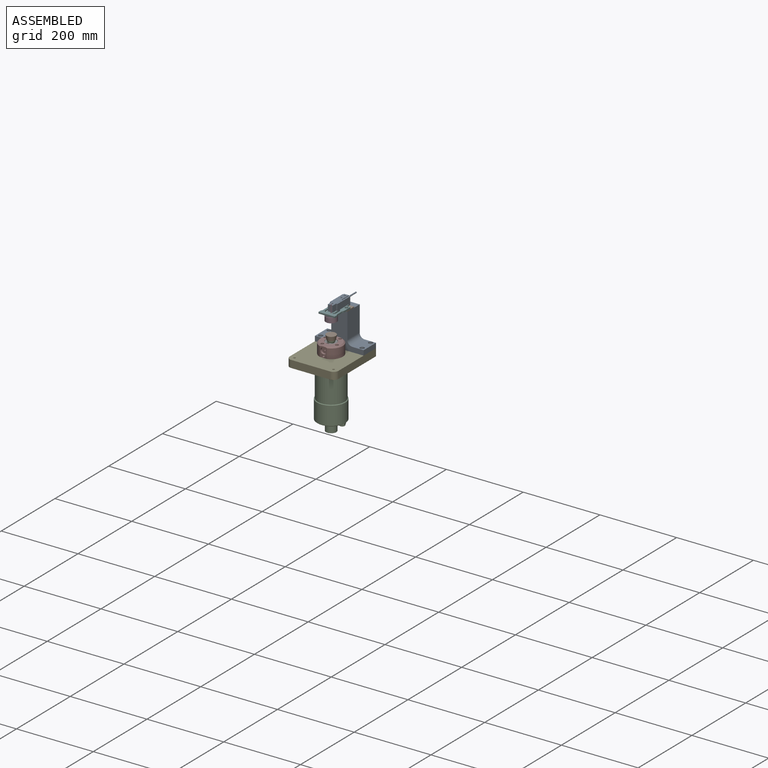
[diagram: assembled view]
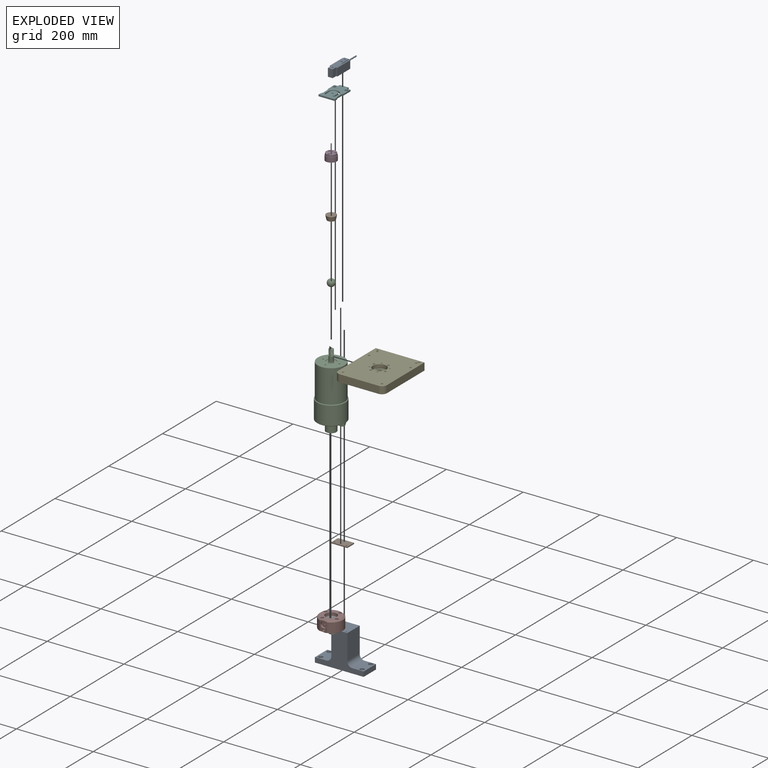
[diagram: exploded view]
GUIDED TOUR — MATED ASSEMBLY WITH SUBASSEMBLIES (Onshape document e1350d4f7f042d9ee2ff2963, AutoMate assembly e1350d4f7f042d9ee2ff2963_89f4badd9b98fbfe98499b85_08aeff5780a35d646b1b420d_default)

This assembly has 15 component occurrences arranged in 11 top-level units: 10 individual components plus 1 subassembly (S0). The tour has two levels: first the top level, where each subassembly is treated as one rigid unit; then each subassembly is toured internally in its own section (nesting deeper than one subassembly level is flattened into its subassembly's section).

Components are labeled P0..P14 across the whole record; subassembly units are labeled S0..S0. A mate is a constraint between two units; its type names the relative motion it leaves free:
  FASTENED — locks the two components together rigidly (no relative motion),
  SLIDER — leaves translation along the listed axis free.
Axis/direction vectors are unit vectors and 'through' points are millimeter coordinates, both in the assembly's world frame.

TOP-LEVEL MATES (between units; each subassembly's internal mates are listed in its own section)
  1. FASTENED "Fastened 5": P14 <-> P8, direction (0.000, 0.000, 1.000) through (0.00, 0.00, 51.94) mm
  2. FASTENED "Fastened 3": P4 <-> P10, direction (0.000, 0.000, 1.000) through (0.00, 0.00, 19.05) mm
  3. FASTENED "Fastened 1": P2 <-> P4, direction (0.000, 0.000, 1.000) through (0.00, 0.00, 0.00) mm
  4. SLIDER "Slider 1": P1 <-> P14, axis (0.000, 0.000, -1.000) through (0.00, 0.00, 51.94) mm
  5. FASTENED "Fastened 4": P10 <-> P8, direction (0.000, 0.000, 1.000) through (0.00, 0.00, 47.63) mm
  6. FASTENED "Fastened 6": S0 <-> P7, direction (0.000, 0.000, 1.000) through (0.00, 4.76, 113.61) mm
  7. FASTENED "Fastened 9": P13 <-> P11, direction (0.000, 0.000, -1.000) through (-15.50, 34.76, 110.88) mm
  8. FASTENED "Fastened 8": P11 <-> P0, direction (0.000, 0.000, 1.000) through (0.00, 38.04, 110.88) mm
  9. FASTENED "Fastened 7": S0 <-> P0, direction (0.000, 0.000, 1.000) through (0.00, 4.76, 113.61) mm

TOP-LEVEL ASSEMBLY ORDER
  1. P2 — the base component [order heuristic]
  2. P4 [order verified]
  3. P8 — core [order heuristic]
  4. P10 — core [order heuristic]
  5. P14 [order verified]
  6. P11 [order verified]
  7. P1 [order verified]
  8. S0 [order verified]
  9. P13 [order verified]
  10. P7 [order verified]
  11. P0 [order verified]
(P1 verified with a relaxed clearance tolerance: the source model stores slight part interference there.)
Order-tag legend:
  [order verified] — this step's position reverses a verified removal order: the component was checked to insert without passing through the ones already placed.
  [order heuristic] — the first 3 components form the assembly's core: parts whose collision-free extraction could not be verified, listed in mate-graph order.

Of the 15 component occurrences, 2 carry the full construction recipe — the FeatureScript program that regenerates the part's solid from scratch; the rest are supplied as boundary geometry only. Each toured unit is shown spotlighted twice — assembled, then exploded with a leader line back to its socket (green = recipe-attached component, orange = geometry-only, blue = subassembly unit; the rest desaturated gray).
NOTE — this tour is split across 2 documents so each fits a 32k-token context. This is document 1: the component sections continue in the remaining 1 document, each repeating the header above.
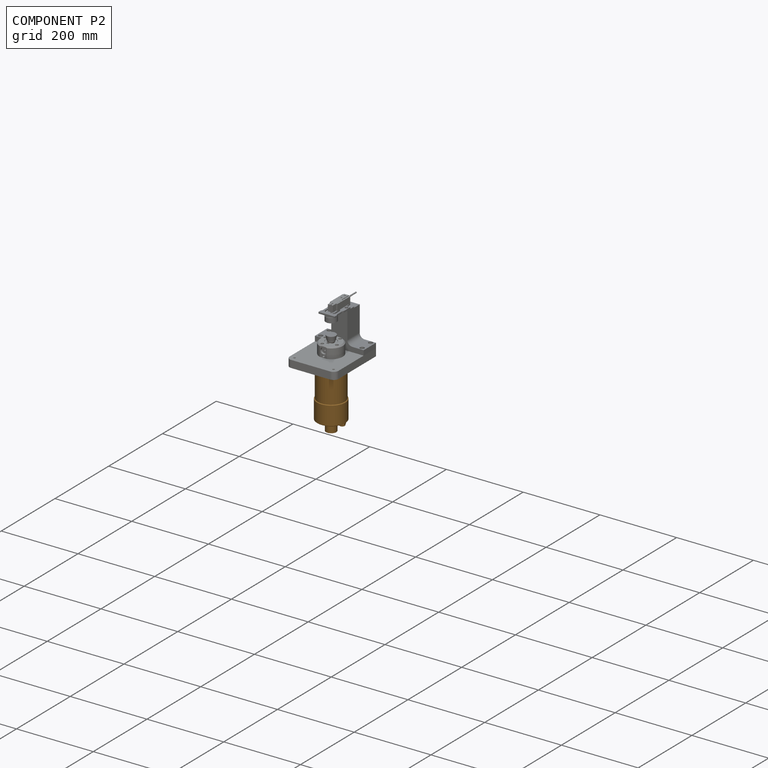
[diagram: component P2 — assembled]
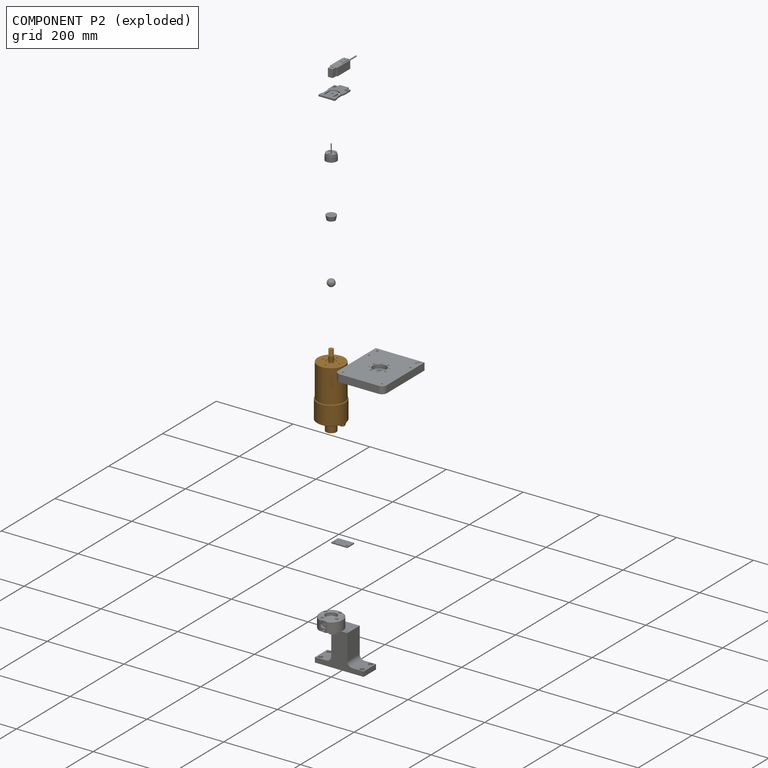
[diagram: component P2 — exploded]
COMPONENT P2 — geometry summary (no construction recipe available for this part):
  bounding box: 193.0 x 74.0 x 74.0 mm
  B-rep topology: 1 solid, 135 faces, 644 edges
  volume: 570761 mm^3 (54% of its bounding box)
  symmetry: mirror-symmetric across its x mid-plane
Held by: FASTENED mate "Fastened 1" to P4.
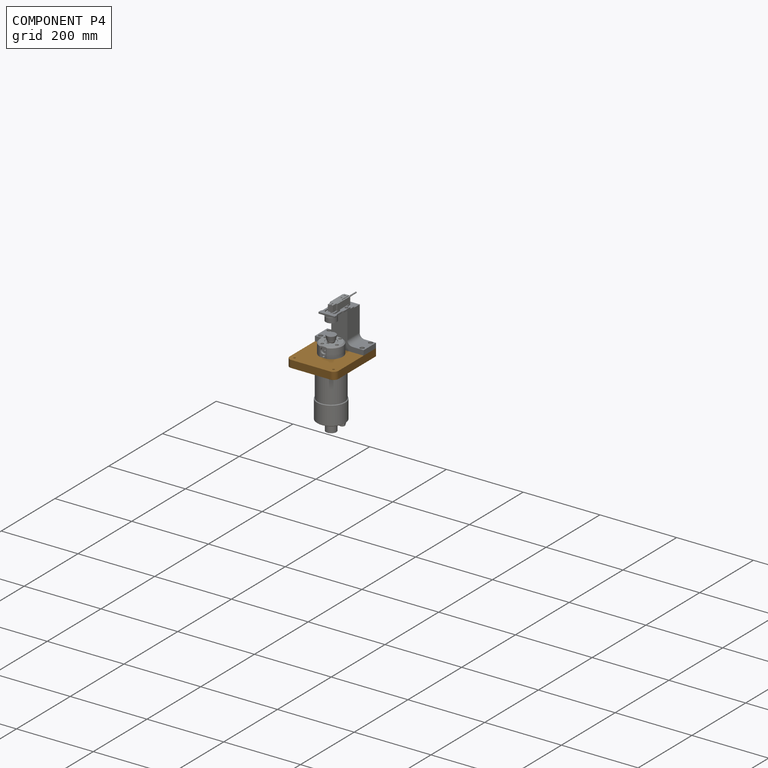
[diagram: component P4 — assembled]
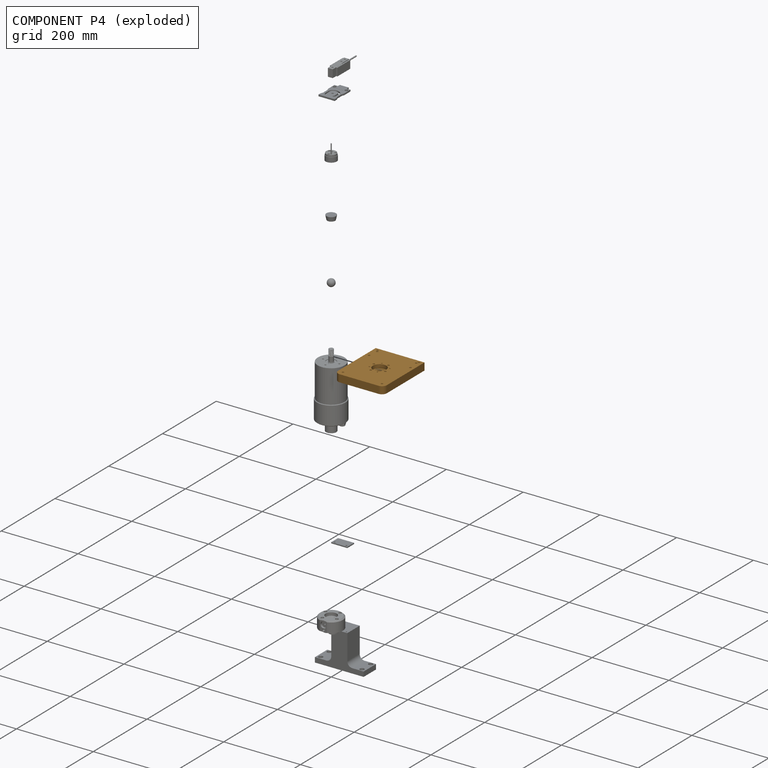
[diagram: component P4 — exploded]
COMPONENT P4 — geometry summary (no construction recipe available for this part):
  bounding box: 152.7 x 127.0 x 19.1 mm
  B-rep topology: 1 solid, 31 faces, 168 edges
  volume: 351803 mm^3 (95% of its bounding box)
Held by: FASTENED mate "Fastened 3" to P10; FASTENED mate "Fastened 1" to P2.
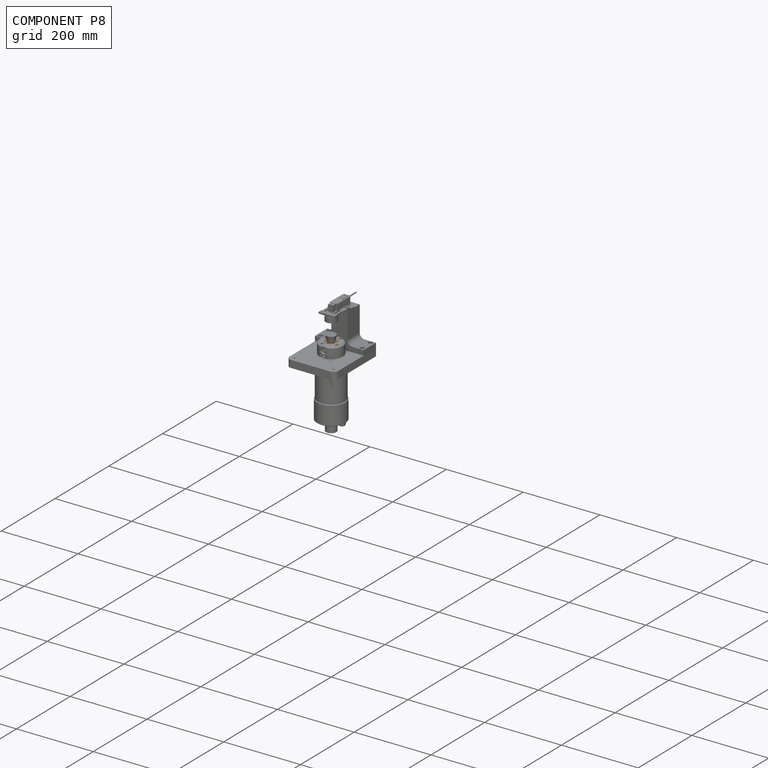
[diagram: component P8 — assembled]
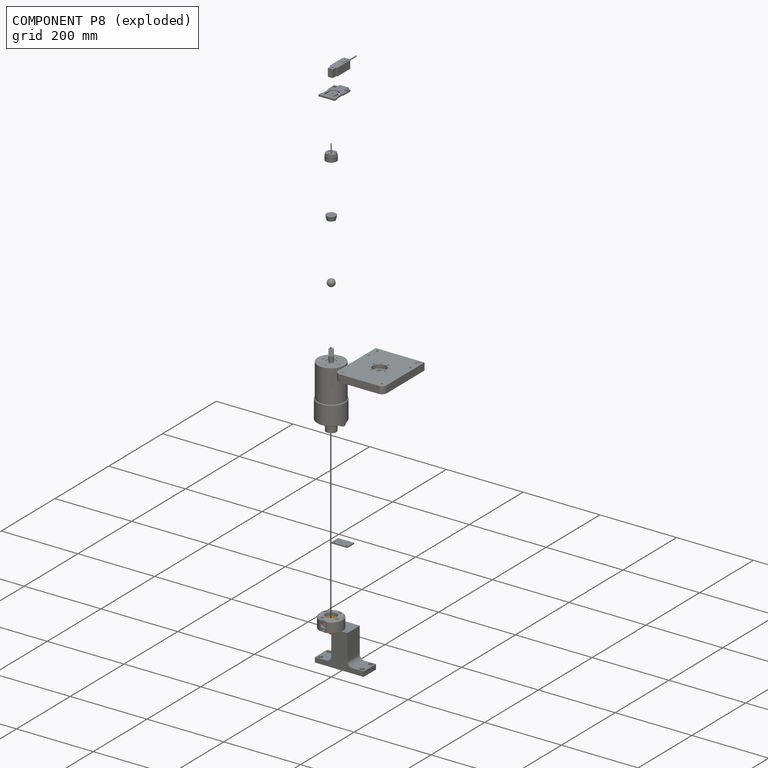
[diagram: component P8 — exploded]
COMPONENT P8 — geometry summary (no construction recipe available for this part):
  bounding box: 34.6 x 31.3 x 30.3 mm
  B-rep topology: 1 solid, 28 faces, 140 edges
  volume: 18357 mm^3 (56% of its bounding box)
  symmetry: mirror-symmetric across its y mid-plane
Held by: FASTENED mate "Fastened 5" to P14; FASTENED mate "Fastened 4" to P10.
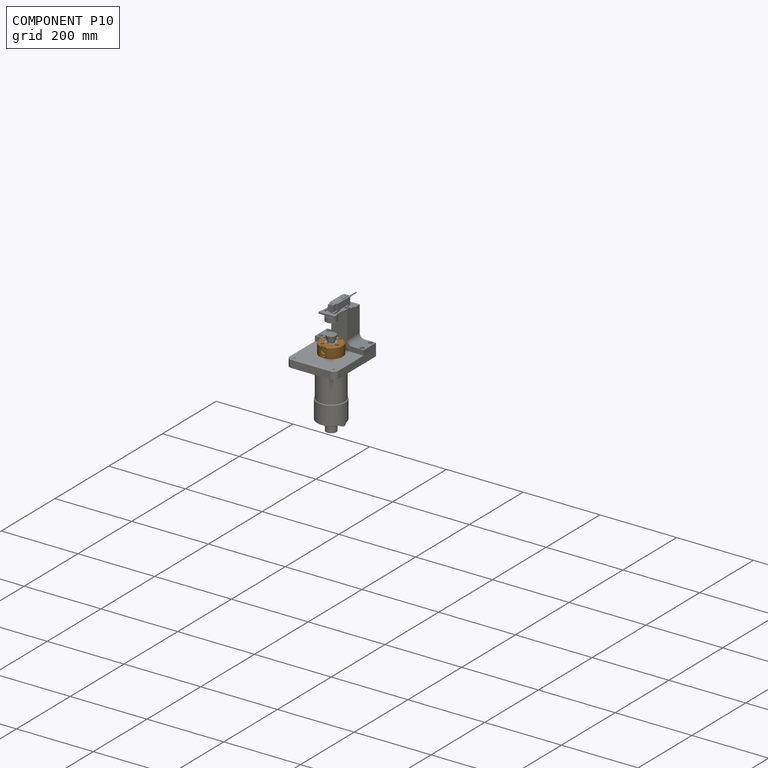
[diagram: component P10 — assembled]
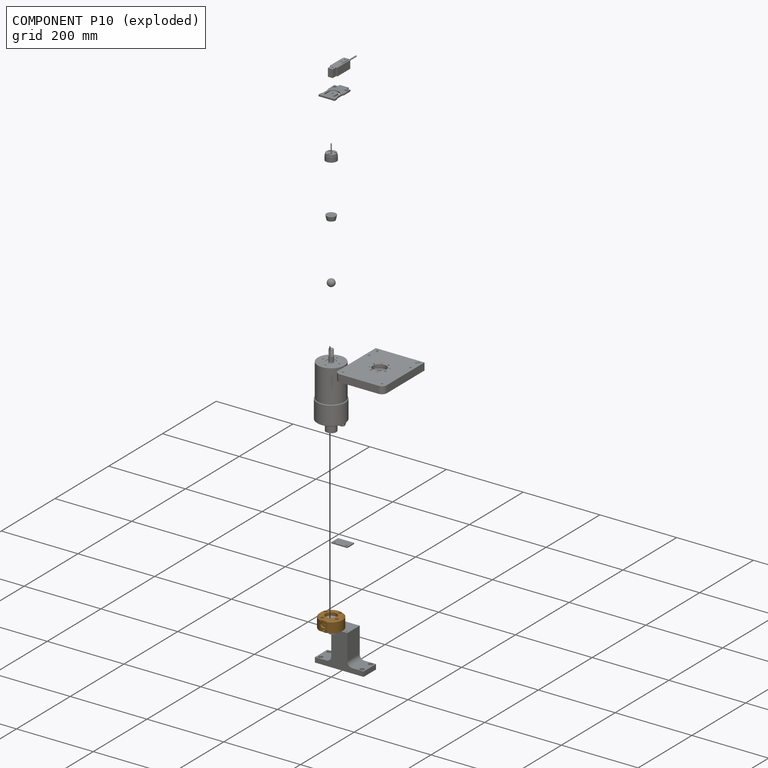
[diagram: component P10 — exploded]
COMPONENT P10 — geometry summary (no construction recipe available for this part):
  bounding box: 60.3 x 60.3 x 28.6 mm
  B-rep topology: 1 solid, 27 faces, 122 edges
  volume: 50724 mm^3 (49% of its bounding box)
Held by: FASTENED mate "Fastened 3" to P4; FASTENED mate "Fastened 4" to P8.
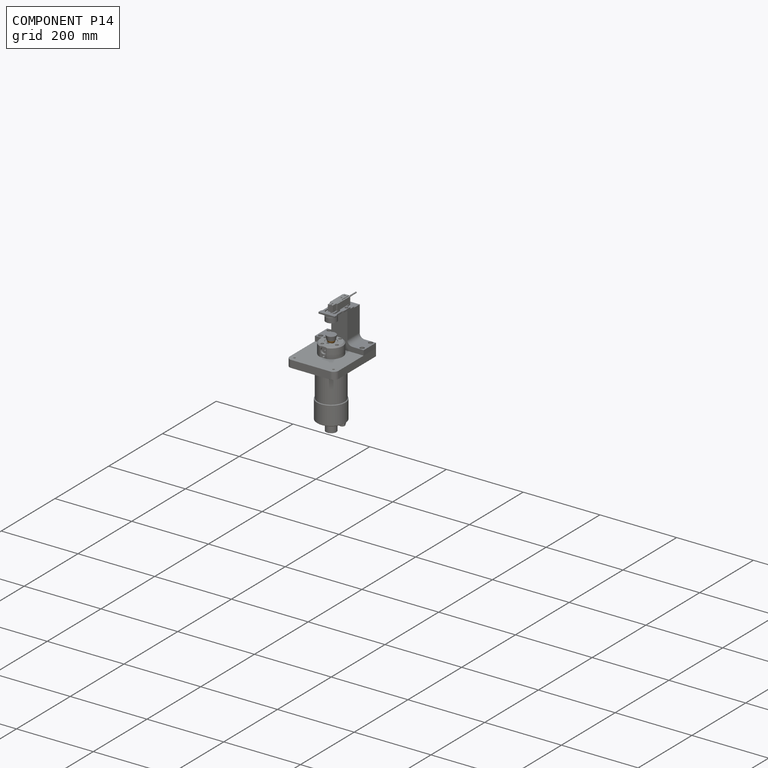
[diagram: component P14 — assembled]
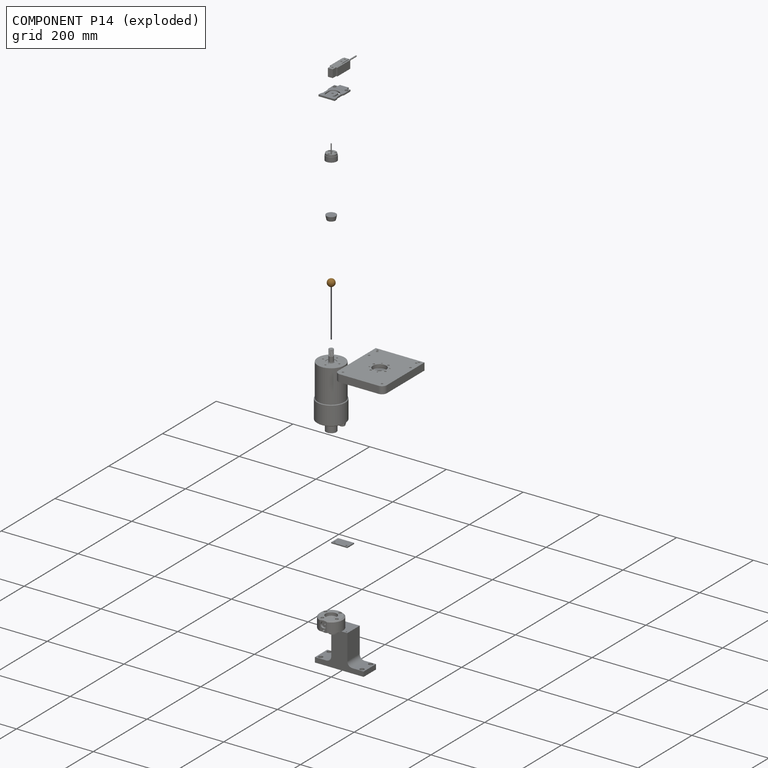
[diagram: component P14 — exploded]
COMPONENT P14 — geometry summary (no construction recipe available for this part):
  bounding box: 19.1 x 19.1 x 19.1 mm
  B-rep topology: 1 solid, 1 faces, 4 edges
  volume: 3620 mm^3 (52% of its bounding box)
  symmetry: revolution-symmetric about the x axis through its bounding-box center; revolution-symmetric about the y axis through its bounding-box center; revolution-symmetric about the z axis through its bounding-box center; mirror-symmetric across its x mid-plane, y mid-plane, z mid-plane
Held by: FASTENED mate "Fastened 5" to P8; SLIDER mate "Slider 1" to P1.
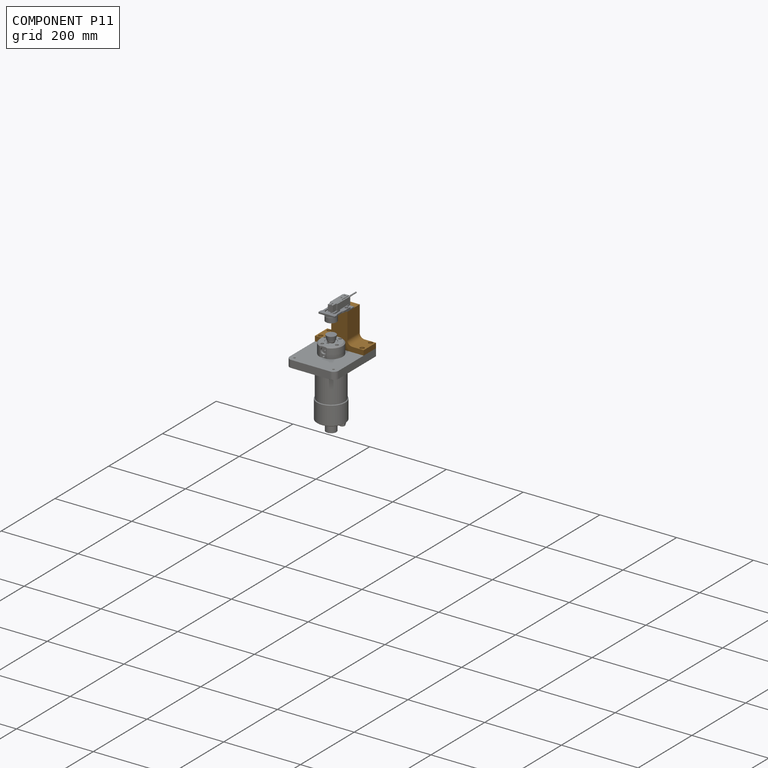
[diagram: component P11 — assembled]
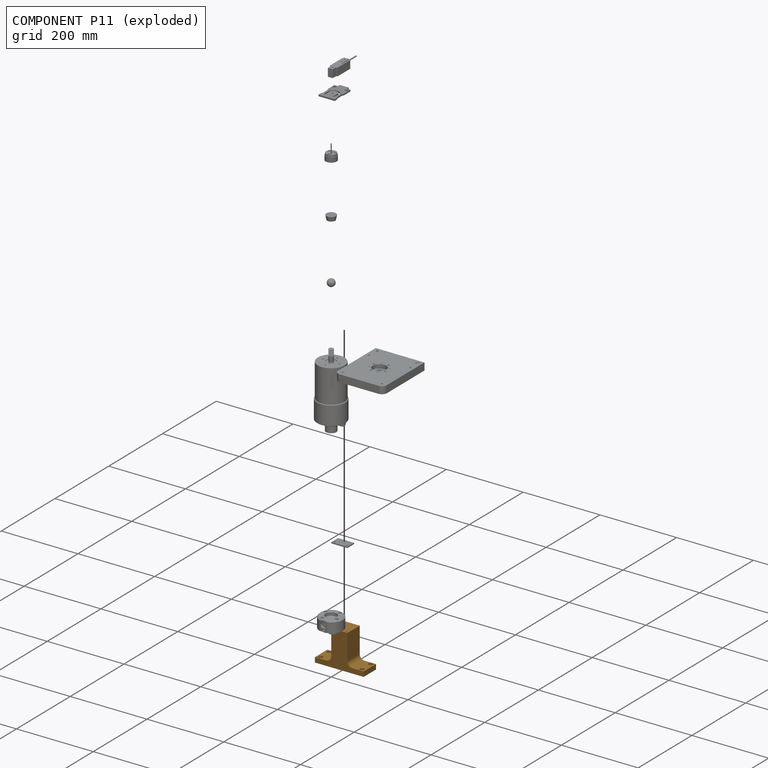
[diagram: component P11 — exploded]
COMPONENT P11 — geometry summary (no construction recipe available for this part):
  bounding box: 127.0 x 91.8 x 46.0 mm
  B-rep topology: 1 solid, 32 faces, 152 edges
  volume: 226254 mm^3 (42% of its bounding box)
  symmetry: mirror-symmetric across its y mid-plane
Held by: FASTENED mate "Fastened 9" to P13; FASTENED mate "Fastened 8" to P0.
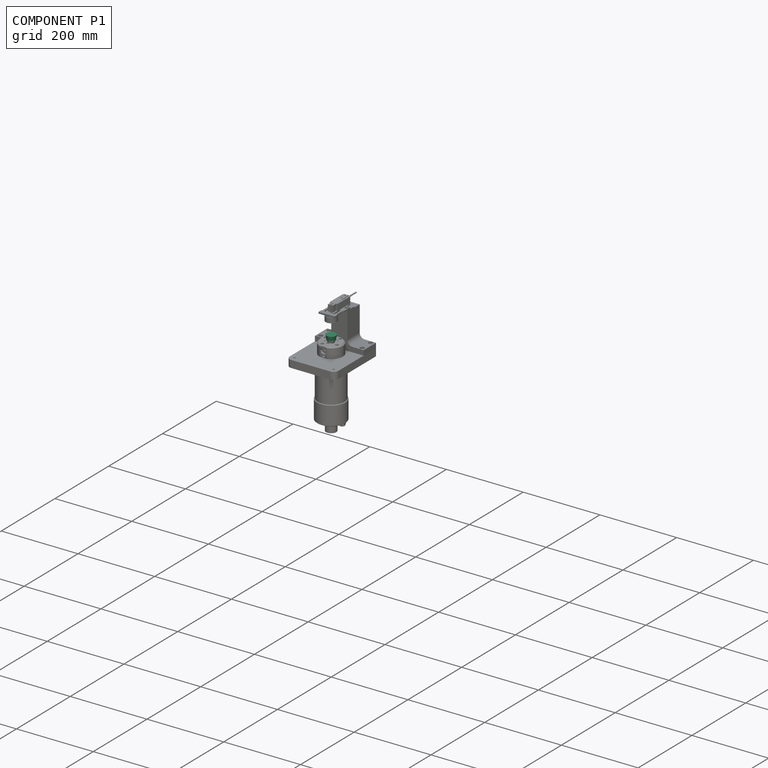
[diagram: component P1 — assembled]
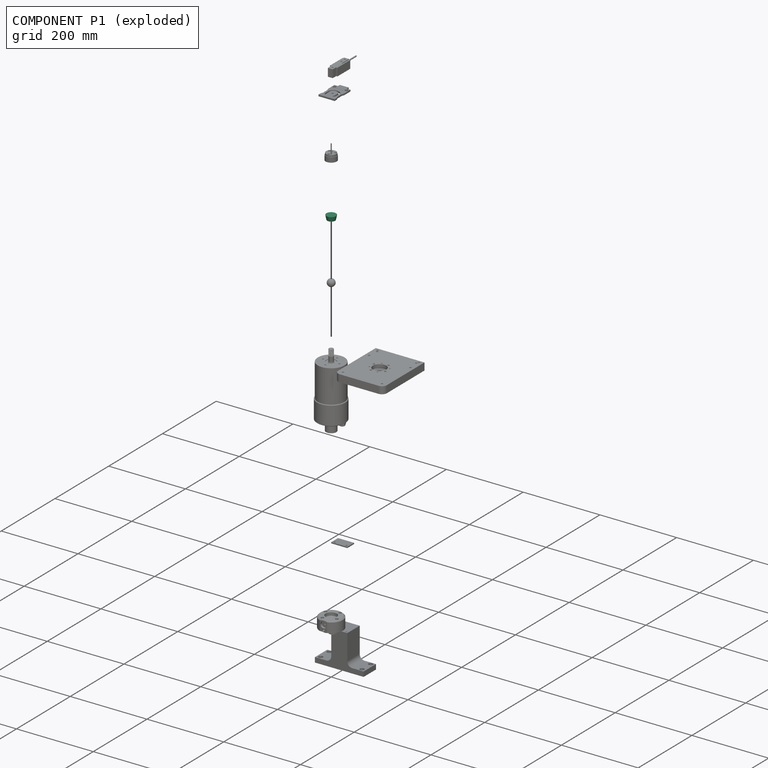
[diagram: component P1 — exploded]
COMPONENT P1 — recipe-attached (CADFS 00536556, mesh-verified: the recipe's output STEP matches this component's geometry to below the mesh-comparison resolution (tessellation chordal tolerance ~0.0561 mm)).
Held by: SLIDER mate "Slider 1" to P14.
Construction recipe (FeatureScript — the CAD program that rebuilds this solid; sketch coordinates are in the units given by the * unit suffixes, e.g. mm):

FeatureScript 1511;
import(path : "onshape/std/geometry.fs", version : "1511.0");
import(path : "onshape/std/common.fs", version : "1511.0");
const mm = millimeter;
const VERTEX = EntityType.VERTEX;
const EDGE = EntityType.EDGE;
const FACE = EntityType.FACE;
const BODY = EntityType.BODY;
function v(x, y){return vector(x, y);}
function OD(order){return orderDisambiguation(order);}
function OSD(set){return originalSetDisambiguation(set);}
function TD(topology){return topologyDisambiguation(topology);}
function TDD(query){return trueDependencyDisambiguation(query);}
function sQuery(a, b, c) {return sketchEntityQuery(a, b, c);}

annotation { "Feature Type Name" : "Feature", "Feature Type Description" : "" }
export const myFeature = defineFeature(function(context is Context, id is Id, definition is map)
    precondition{}
    {
        {
            var Q0;
            Q0=qCreatedBy(makeId("Front.planeOp"),FACE);
            var sketch = newSketch(context, id + "F0", { "sketchPlane" : qUnion([Q0])});
            skLineSegment(sketch, "E0", {"start": v(0, 0) * mm, "end": v(12.12, 0) * mm});
            skLineSegment(sketch, "E1", {"start": v(12.52, 0.4) * mm, "end": v(12.52, 0.81) * mm});
            skLineSegment(sketch, "E2", {"start": v(12.52, 0.81) * mm, "end": v(10.16, 12.1) * mm, "construction": true});
            skLineSegment(sketch, "E3", {"start": v(10.16, 12.1) * mm, "end": v(9.58, 12.1) * mm});
            skLineSegment(sketch, "E4", {"start": v(0, 0) * mm, "end": v(0, 2.54) * mm});
            skLineSegment(sketch, "E5", {"start": v(9.58, 12.1) * mm, "end": v(0, 12.1) * mm, "construction": true});
            skLineSegment(sketch, "E6", {"start": v(0, 12.1) * mm, "end": v(0, 2.54) * mm, "construction": true});
            skLineSegment(sketch, "E7", {"start": v(0, 12.1) * mm, "end": v(10.16, 12.1) * mm, "construction": true});
            skLineSegment(sketch, "E8", {"start": v(10.16, 12.1) * mm, "end": v(12.52, 0.81) * mm});
            skLineSegment(sketch, "E9", {"start": v(12.12, 0) * mm, "end": v(12.52, 0.4) * mm});
            skPoint(sketch, "E10.orphan", {"position": v(12.52, 0) * mm});
            skLineSegment(sketch, "E11", {"start": v(9.58, 12.1) * mm, "end": v(9.58, 10.16) * mm});
            skLineSegment(sketch, "E12", {"start": v(1.96, 2.54) * mm, "end": v(0, 2.54) * mm});
            skPoint(sketch, "E13.visualSharp", {"position": v(9.58, 2.54) * mm});
            skArc(sketch, "E13.filletArc", {"start": v(1.96, 2.54) * mm, "mid": v(7.35, 4.77) * mm, "end": v(9.58, 10.16) * mm});
            skSolve(sketch);
        }
        {
            var Q0;
            Q0=qSketchRegion(id+"F0",true);
            var Q1;
            Q1=sQuery(id+"F0.wireOp",EDGE,"E6");
            revolve(context, id + "F1", {"entities" : qUnion([Q0]), "axis" : qUnion([Q1]), "revolveType" : RevolveType.FULL});
        }
    });
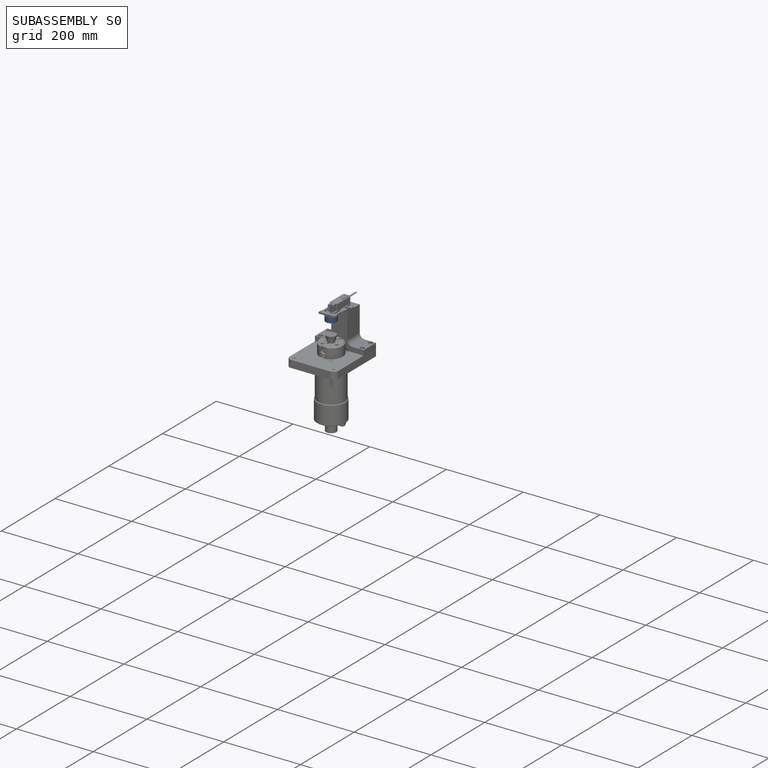
[diagram: subassembly S0 — assembled]
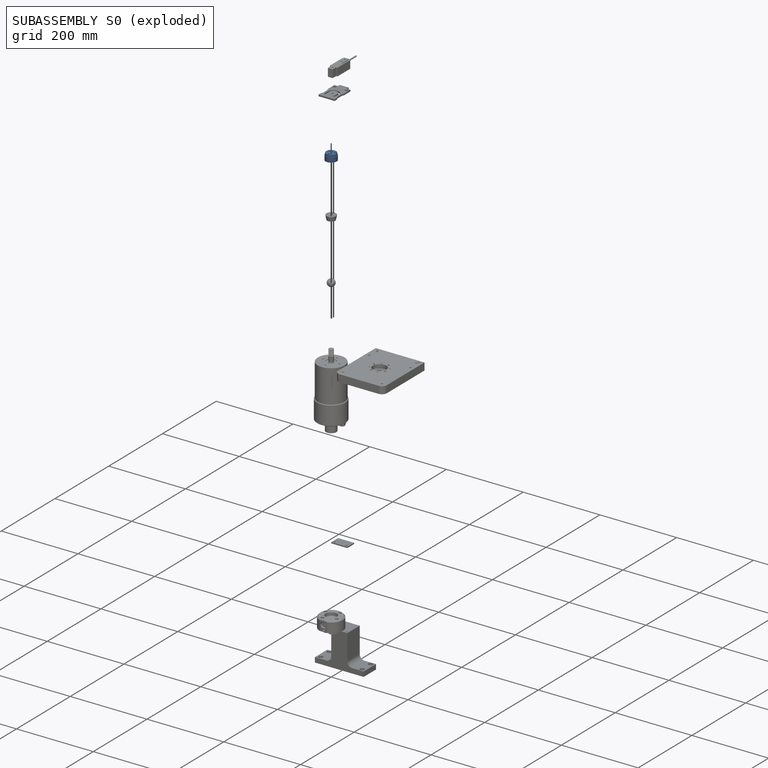
[diagram: subassembly S0 — exploded]
SUBASSEMBLY S0 — 5 components (P3, P5, P6, P9, P12), of which 0 recipe-attached; toured below.
Held by: FASTENED mate "Fastened 6" to P7; FASTENED mate "Fastened 7" to P0.
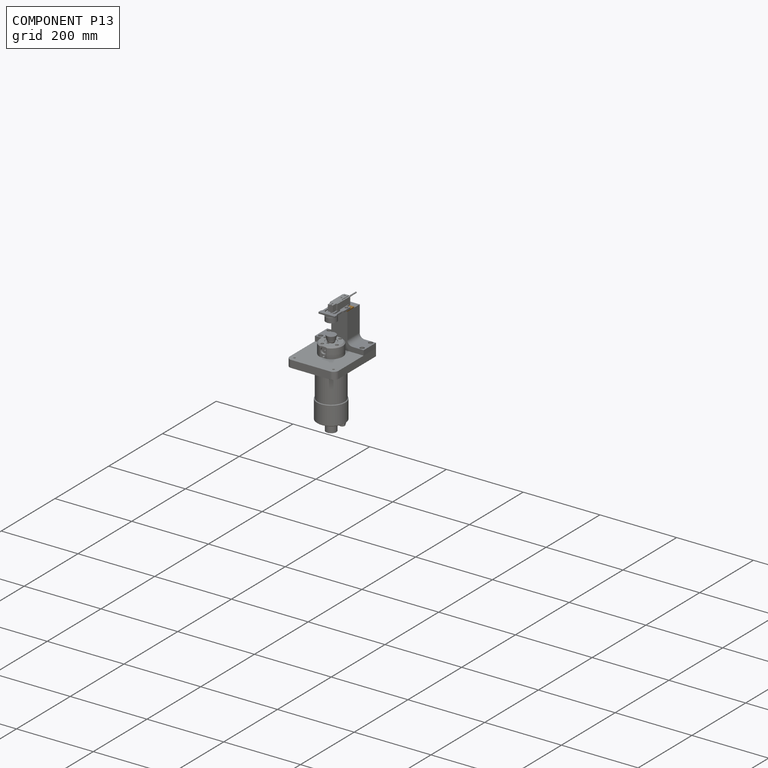
[diagram: component P13 — assembled]
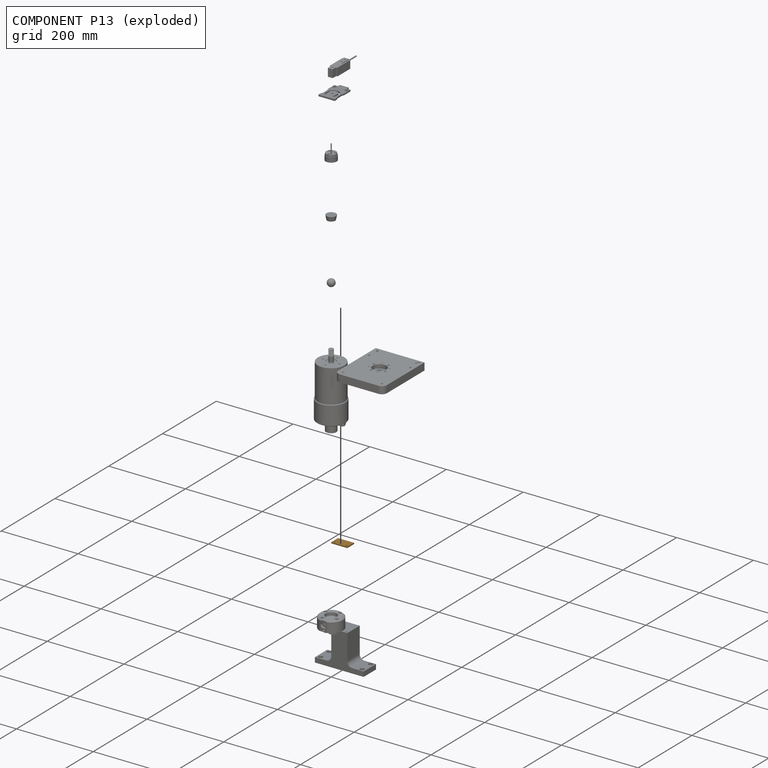
[diagram: component P13 — exploded]
COMPONENT P13 — geometry summary (no construction recipe available for this part):
  bounding box: 42.0 x 25.4 x 2.7 mm
  B-rep topology: 1 solid, 8 faces, 36 edges
  volume: 2836 mm^3 (97% of its bounding box)
  symmetry: 2-fold rotationally symmetric about the y axis; mirror-symmetric across its x mid-plane, z mid-plane
Held by: FASTENED mate "Fastened 9" to P11.
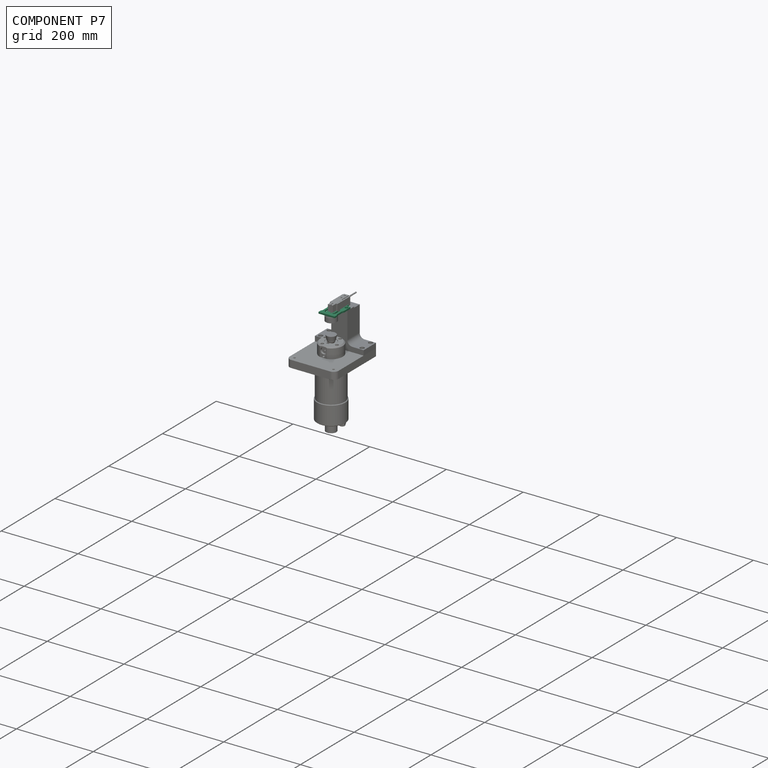
[diagram: component P7 — assembled]
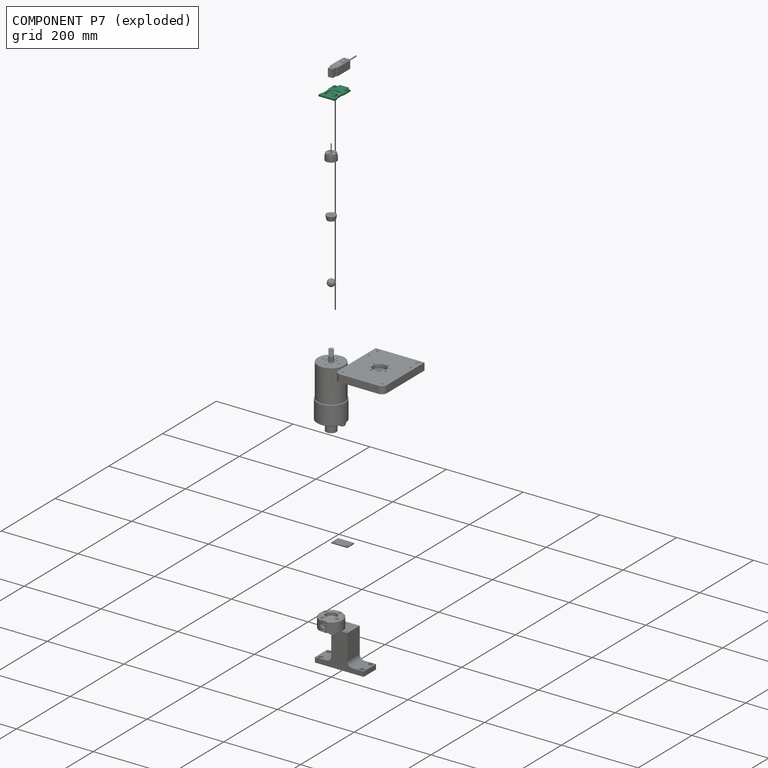
[diagram: component P7 — exploded]
COMPONENT P7 — recipe-attached (CADFS 00536474, mesh-verified: the recipe's output STEP matches this component's geometry to below the mesh-comparison resolution (tessellation chordal tolerance ~0.118 mm)).
Held by: FASTENED mate "Fastened 6" to P3.
Construction recipe (FeatureScript — the CAD program that rebuilds this solid; sketch coordinates are in the units given by the * unit suffixes, e.g. mm):

FeatureScript 1511;
import(path : "onshape/std/geometry.fs", version : "1511.0");
import(path : "onshape/std/common.fs", version : "1511.0");
const mm = millimeter;
const VERTEX = EntityType.VERTEX;
const EDGE = EntityType.EDGE;
const FACE = EntityType.FACE;
const BODY = EntityType.BODY;
function v(x, y){return vector(x, y);}
function OD(order){return orderDisambiguation(order);}
function OSD(set){return originalSetDisambiguation(set);}
function TD(topology){return topologyDisambiguation(topology);}
function TDD(query){return trueDependencyDisambiguation(query);}
function sQuery(a, b, c) {return sketchEntityQuery(a, b, c);}

annotation { "Feature Type Name" : "Feature", "Feature Type Description" : "" }
export const myFeature = defineFeature(function(context is Context, id is Id, definition is map)
    precondition{}
    {
        {
            var Q0;
            Q0=qCreatedBy(makeId("Top.planeOp"),FACE);
            var sketch = newSketch(context, id + "F0", { "sketchPlane" : qUnion([Q0])});
            skLineSegment(sketch, "E0.bottom", {"start": v(-33, 21) * mm, "end": v(33, 21) * mm, "construction": true});
            skLineSegment(sketch, "E0.top", {"start": v(-33, -21) * mm, "end": v(33, -21) * mm, "construction": true});
            skLineSegment(sketch, "E0.left", {"start": v(-33, 21) * mm, "end": v(-33, -21) * mm, "construction": true});
            skLineSegment(sketch, "E0.right", {"start": v(33, 21) * mm, "end": v(33, -21) * mm, "construction": true});
            skLineSegment(sketch, "E1", {"start": v(-33, 21) * mm, "end": v(33, -21) * mm, "construction": true});
            skPoint(sketch, "E2", {"position": v(-11, 0) * mm});
            skPoint(sketch, "E3", {"position": v(19, 15.5) * mm});
            skPoint(sketch, "E4", {"position": v(19, -15.5) * mm});
            skLineSegment(sketch, "E5", {"start": v(19, 15.5) * mm, "end": v(19, -15.5) * mm, "construction": true});
            skLineSegment(sketch, "E6", {"start": v(19, 0) * mm, "end": v(33, 0) * mm, "construction": true});
            skPoint(sketch, "E6.endSnap0", {"position": v(33, 0) * mm});
            skSolve(sketch);
        }
        {
            var Q0;
            Q0=qCreatedBy(makeId("Top.planeOp"),FACE);
            var sketch = newSketch(context, id + "F1", { "sketchPlane" : qUnion([Q0])});
            skLineSegment(sketch, "E7", {"start": v(26, 21) * mm, "end": v(-33, 21) * mm});
            skLineSegment(sketch, "E8", {"start": v(-33, 21) * mm, "end": v(-33, -21) * mm});
            skLineSegment(sketch, "E9", {"start": v(19, 15.5) * mm, "end": v(33, 15.5) * mm, "construction": true});
            skLineSegment(sketch, "E10", {"start": v(26, 15.5) * mm, "end": v(26, 31.74) * mm, "construction": true});
            skLineSegment(sketch, "E11", {"start": v(12, 15.72) * mm, "end": v(12, 31.74) * mm, "construction": true});
            skLineSegment(sketch, "E12", {"start": v(12, 31.74) * mm, "end": v(26, 31.74) * mm, "construction": true});
            skLineSegment(sketch, "E13", {"start": v(19, 15.5) * mm, "end": v(19, 31.74) * mm, "construction": true});
            skCircle(sketch, "E14", {"center": v(19, 15.5) * mm, "radius": 4 * mm});
            skLineSegment(sketch, "E15", {"start": v(26, 21) * mm, "end": v(26, 14.04) * mm});
            skLineSegment(sketch, "E16", {"start": v(28.54, 11.5) * mm, "end": v(33, 11.5) * mm});
            skLineSegment(sketch, "E17", {"start": v(33, 11.5) * mm, "end": v(33, -11.5) * mm});
            skLineSegment(sketch, "E18", {"start": v(33, -11.5) * mm, "end": v(26, -11.5) * mm});
            skLineSegment(sketch, "E19", {"start": v(26, -11.5) * mm, "end": v(26, -21) * mm});
            skLineSegment(sketch, "E20", {"start": v(26, -21) * mm, "end": v(-33, -21) * mm});
            skPoint(sketch, "E21", {"position": v(33, 0) * mm});
            skLineSegment(sketch, "E22", {"start": v(33, 0) * mm, "end": v(7.99, 0) * mm, "construction": true});
            skCircle(sketch, "E23.MirrorC", {"center": v(19, -15.5) * mm, "radius": 4 * mm});
            skPoint(sketch, "E24.visualSharp", {"position": v(26, 11.5) * mm});
            skArc(sketch, "E24.filletArc", {"start": v(26, 14.04) * mm, "mid": v(26.74, 12.24) * mm, "end": v(28.54, 11.5) * mm});
            skSolve(sketch);
        }
        {
            var Q0;
            Q0=makeQuery(id+"F1.imprint","IMPRINT",FACE,{"disambiguationData":[TD([[makeQuery(id+"F1.imprint","IMPRINT",EDGE,{"derivedFrom":sQuery(id+"F1.wireOp",EDGE,"E7")}),1.0]])]});
            var Q1;
            Q1 = qConstructionFilter(qBodyType(qCreatedBy(id + "F1" ,EDGE), BodyType.WIRE), ConstructionObject.NO);
            extrude(context, id + "F2", {"entities" : qUnion([Q0]), "surfaceEntities" : qUnion([Q1]), "depth" : 4.06 * mm, "offsetDistance" : 25.4 * mm});
        }
        {
            var Q0;
            Q0=sQuery(id+"F0.wireOp",VERTEX,"E2");
            var Q1;
            Q1=makeQuery(id+"F2.opExtrude","SWEPT_BODY",BODY,{"disambiguationData":[OSD([sQuery(id+"F1.wireOp",EDGE,"E7"),sQuery(id+"F1.wireOp",EDGE,"E8"),sQuery(id+"F1.wireOp",EDGE,"E14"),sQuery(id+"F1.wireOp",EDGE,"E15"),sQuery(id+"F1.wireOp",EDGE,"E16"),sQuery(id+"F1.wireOp",EDGE,"E17"),sQuery(id+"F1.wireOp",EDGE,"E18"),sQuery(id+"F1.wireOp",EDGE,"E19"),sQuery(id+"F1.wireOp",EDGE,"E20"),sQuery(id+"F1.wireOp",EDGE,"E23.MirrorC"),sQuery(id+"F1.wireOp",EDGE,"E24.filletArc")])]});
            hole(context, id + "F3", {"style" : HoleStyle.SIMPLE, "endStyle" : HoleEndStyle.THROUGH, "oppositeDirection" : true, "standardTappedOrClearance" : lookupTablePath({ "standard" : "ISO", "size" : "5", "type" : "Drilled" }), "standardBlindInLast" : lookupTablePath({ "standard" : "ISO", "size" : "5", "type" : "Drilled" }), "holeDiameter" : 5 * mm, "majorDiameter" : 6.35 * mm, "tappedDepth" : 9.52 * mm, "tapClearance" : 1, "startFromSketch" : true, "locations" : qUnion([Q0]), "scope" : qUnion([Q1])});
        }
        {
            var Q0;
            Q0=makeQuery(id+"F2.opExtrude","CAP_FACE",FACE,{"disambiguationData":[OSD([sQuery(id+"F1.wireOp",EDGE,"E7"),sQuery(id+"F1.wireOp",EDGE,"E8"),sQuery(id+"F1.wireOp",EDGE,"E14"),sQuery(id+"F1.wireOp",EDGE,"E15"),sQuery(id+"F1.wireOp",EDGE,"E16"),sQuery(id+"F1.wireOp",EDGE,"E17"),sQuery(id+"F1.wireOp",EDGE,"E18"),sQuery(id+"F1.wireOp",EDGE,"E19"),sQuery(id+"F1.wireOp",EDGE,"E20"),sQuery(id+"F1.wireOp",EDGE,"E23.MirrorC"),sQuery(id+"F1.wireOp",EDGE,"E24.filletArc")])],"isStart":true});
            var sketch = newSketch(context, id + "F4", { "sketchPlane" : qUnion([Q0])});
            skLineSegment(sketch, "E25", {"start": v(-23.7, -21) * mm, "end": v(-23.7, -20.2) * mm});
            skLineSegment(sketch, "E26", {"start": v(-23.7, -20.2) * mm, "end": v(-18.94, -18.78) * mm});
            skLineSegment(sketch, "E27", {"start": v(-18.94, -18.78) * mm, "end": v(-3.06, -18.78) * mm});
            skLineSegment(sketch, "E28", {"start": v(-3.06, -18.78) * mm, "end": v(1.7, -20.2) * mm});
            skLineSegment(sketch, "E29", {"start": v(1.7, -20.2) * mm, "end": v(1.7, -21) * mm});
            skLineSegment(sketch, "E30", {"start": v(1.7, -21) * mm, "end": v(-23.7, -21) * mm});
            skLineSegment(sketch, "E31", {"start": v(-11, 0) * mm, "end": v(-11, -18.78) * mm, "construction": true});
            skLineSegment(sketch, "E32", {"start": v(-11, 0) * mm, "end": v(48.35, 0) * mm, "construction": true});
            skLineSegment(sketch, "E33.MirrorCS", {"start": v(-23.7, 21) * mm, "end": v(-23.7, 20.2) * mm});
            skLineSegment(sketch, "E34.MirrorCS", {"start": v(1.7, 20.2) * mm, "end": v(1.7, 21) * mm});
            skLineSegment(sketch, "E35.MirrorCS", {"start": v(-23.7, 20.2) * mm, "end": v(-18.94, 18.78) * mm});
            skLineSegment(sketch, "E36.MirrorCS", {"start": v(-3.06, 18.78) * mm, "end": v(1.7, 20.2) * mm});
            skLineSegment(sketch, "E37.MirrorCS", {"start": v(1.7, 21) * mm, "end": v(-23.7, 21) * mm});
            skLineSegment(sketch, "E38.MirrorCS", {"start": v(-18.94, 18.78) * mm, "end": v(-3.06, 18.78) * mm});
            skSolve(sketch);
        }
        {
            var Q0;
            Q0 = qSketchRegion(id + "F4", true);
            extrude(context, id + "F5", {"entities" : qUnion([Q0]), "operationType" : NewBodyOperationType.REMOVE, "oppositeDirection" : true, "depth" : 25.4 * mm, "offsetDistance" : 25.4 * mm});
        }
        {
            var Q0;
            Q0=makeQuery(id+"F2.opExtrude","CAP_FACE",FACE,{"disambiguationData":[OSD([sQuery(id+"F1.wireOp",EDGE,"E7"),sQuery(id+"F1.wireOp",EDGE,"E8"),sQuery(id+"F1.wireOp",EDGE,"E14"),sQuery(id+"F1.wireOp",EDGE,"E15"),sQuery(id+"F1.wireOp",EDGE,"E16"),sQuery(id+"F1.wireOp",EDGE,"E17"),sQuery(id+"F1.wireOp",EDGE,"E18"),sQuery(id+"F1.wireOp",EDGE,"E19"),sQuery(id+"F1.wireOp",EDGE,"E20"),sQuery(id+"F1.wireOp",EDGE,"E23.MirrorC"),sQuery(id+"F1.wireOp",EDGE,"E24.filletArc")])],"isStart":false});
            var sketch = newSketch(context, id + "F6", { "sketchPlane" : qUnion([Q0])});
            skLineSegment(sketch, "E39", {"start": v(-20.99, 8.5) * mm, "end": v(-17.62, 10.07) * mm});
            skLineSegment(sketch, "E40", {"start": v(-17.62, 10.07) * mm, "end": v(-4.38, 10.07) * mm});
            skLineSegment(sketch, "E41", {"start": v(-4.38, 10.07) * mm, "end": v(-1.01, 8.5) * mm});
            skArc(sketch, "E42", {"start": v(2.12, 0) * mm, "mid": v(1.3, 4.53) * mm, "end": v(-1.01, 8.5) * mm});
            skLineSegment(sketch, "E43", {"start": v(-11, 0) * mm, "end": v(-11, 10.07) * mm, "construction": true});
            skArc(sketch, "E44.0", {"start": v(5.93, 0) * mm, "mid": v(4.73, 6.25) * mm, "end": v(1.3, 11.62) * mm});
            skLineSegment(sketch, "E44.1", {"start": v(-3.53, 13.88) * mm, "end": v(1.3, 11.62) * mm});
            skLineSegment(sketch, "E44.2", {"start": v(-18.47, 13.88) * mm, "end": v(-3.53, 13.88) * mm});
            skLineSegment(sketch, "E44.3", {"start": v(-22.6, 11.95) * mm, "end": v(-18.47, 13.88) * mm});
            skLineSegment(sketch, "E45.0", {"start": v(32.35, 17.85) * mm, "end": v(32.35, 27.35) * mm});
            skLineSegment(sketch, "E45.1", {"start": v(39.35, 17.85) * mm, "end": v(32.35, 17.85) * mm});
            skLineSegment(sketch, "E45.2", {"start": v(39.35, -17.85) * mm, "end": v(39.35, 17.85) * mm});
            skLineSegment(sketch, "E45.3", {"start": v(32.35, -17.85) * mm, "end": v(39.35, -17.85) * mm});
            skLineSegment(sketch, "E45.4", {"start": v(32.35, -27.35) * mm, "end": v(32.35, -17.85) * mm});
            skLineSegment(sketch, "E45.5", {"start": v(-17.35, 27.35) * mm, "end": v(-39.35, 27.35) * mm});
            skLineSegment(sketch, "E45.6", {"start": v(-17.35, 25.13) * mm, "end": v(-17.35, 27.35) * mm});
            skLineSegment(sketch, "E45.7", {"start": v(-4.65, 25.13) * mm, "end": v(-17.35, 25.13) * mm});
            skLineSegment(sketch, "E45.8", {"start": v(-4.65, 27.35) * mm, "end": v(-4.65, 25.13) * mm});
            skLineSegment(sketch, "E45.9", {"start": v(-39.35, 27.35) * mm, "end": v(-39.35, -27.35) * mm});
            skLineSegment(sketch, "E45.10", {"start": v(-39.35, -27.35) * mm, "end": v(-17.35, -27.35) * mm});
            skLineSegment(sketch, "E45.11", {"start": v(-17.35, -27.35) * mm, "end": v(-17.35, -25.13) * mm});
            skLineSegment(sketch, "E45.12", {"start": v(-17.35, -25.13) * mm, "end": v(-4.65, -25.13) * mm});
            skLineSegment(sketch, "E45.13", {"start": v(-4.65, -25.13) * mm, "end": v(-4.65, -27.35) * mm});
            skLineSegment(sketch, "E45.14", {"start": v(32.35, 27.35) * mm, "end": v(-4.65, 27.35) * mm});
            skLineSegment(sketch, "E45.15", {"start": v(-4.65, -27.35) * mm, "end": v(32.35, -27.35) * mm});
            skLineSegment(sketch, "E46", {"start": v(-11, 0) * mm, "end": v(4.8, 0) * mm, "construction": true});
            skLineSegment(sketch, "E47", {"start": v(-20.99, 8.5) * mm, "end": v(-22.6, 11.95) * mm, "construction": true});
            skArc(sketch, "E48", {"start": v(-22.6, 11.95) * mm, "mid": v(-23.52, 9.42) * mm, "end": v(-20.99, 8.5) * mm});
            skLineSegment(sketch, "E49.MirrorCS", {"start": v(-4.38, -10.07) * mm, "end": v(-1.01, -8.5) * mm});
            skArc(sketch, "E50.MirrorCS", {"start": v(-22.6, -11.95) * mm, "mid": v(-23.52, -9.42) * mm, "end": v(-20.99, -8.5) * mm});
            skLineSegment(sketch, "E51.MirrorCS", {"start": v(-20.99, -8.5) * mm, "end": v(-22.6, -11.95) * mm, "construction": true});
            skLineSegment(sketch, "E52.MirrorCS", {"start": v(-17.62, -10.07) * mm, "end": v(-4.38, -10.07) * mm});
            skArc(sketch, "E53.MirrorCS", {"start": v(5.93, 0) * mm, "mid": v(4.73, -6.25) * mm, "end": v(1.3, -11.62) * mm});
            skArc(sketch, "E54.MirrorCS", {"start": v(2.12, 0) * mm, "mid": v(1.3, -4.53) * mm, "end": v(-1.01, -8.5) * mm});
            skLineSegment(sketch, "E55.MirrorCS", {"start": v(-3.53, -13.88) * mm, "end": v(1.3, -11.62) * mm});
            skLineSegment(sketch, "E56.MirrorCS", {"start": v(-11, 0) * mm, "end": v(-11, -10.07) * mm, "construction": true});
            skLineSegment(sketch, "E57.MirrorCS", {"start": v(-20.99, -8.5) * mm, "end": v(-17.62, -10.07) * mm});
            skLineSegment(sketch, "E58.MirrorCS", {"start": v(-22.6, -11.95) * mm, "end": v(-18.47, -13.88) * mm});
            skLineSegment(sketch, "E59.MirrorCS", {"start": v(-18.47, -13.88) * mm, "end": v(-3.53, -13.88) * mm});
            skLineSegment(sketch, "E60", {"start": v(-23.7, 20.2) * mm, "end": v(-23.7, -20.2) * mm, "construction": true});
            skSolve(sketch);
        }
        {
            var Q0;
            Q0=makeQuery(id+"F6.imprint","IMPRINT",FACE,{"disambiguationData":[TD([[makeQuery(id+"F6.imprint","IMPRINT",EDGE,{"derivedFrom":sQuery(id+"F6.wireOp",EDGE,"E39")}),1.0]])]});
            extrude(context, id + "F7", {"entities" : qUnion([Q0]), "operationType" : NewBodyOperationType.REMOVE, "oppositeDirection" : true, "depth" : 25.4 * mm, "offsetDistance" : 25.4 * mm});
        }
        {
            var Q0;
            Q0=makeQuery(id+"F2.opExtrude","CAP_FACE",FACE,{"disambiguationData":[OSD([sQuery(id+"F1.wireOp",EDGE,"E7"),sQuery(id+"F1.wireOp",EDGE,"E8"),sQuery(id+"F1.wireOp",EDGE,"E14"),sQuery(id+"F1.wireOp",EDGE,"E15"),sQuery(id+"F1.wireOp",EDGE,"E16"),sQuery(id+"F1.wireOp",EDGE,"E17"),sQuery(id+"F1.wireOp",EDGE,"E18"),sQuery(id+"F1.wireOp",EDGE,"E19"),sQuery(id+"F1.wireOp",EDGE,"E20"),sQuery(id+"F1.wireOp",EDGE,"E23.MirrorC"),sQuery(id+"F1.wireOp",EDGE,"E24.filletArc")])],"isStart":false});
            var sketch = newSketch(context, id + "F8", { "sketchPlane" : qUnion([Q0])});
            skLineSegment(sketch, "E61.bottom", {"start": v(-23.7, 21) * mm, "end": v(13.85, 21) * mm});
            skLineSegment(sketch, "E61.top", {"start": v(-23.7, 10.07) * mm, "end": v(2.12, 10.07) * mm});
            skLineSegment(sketch, "E61.left", {"start": v(-23.7, 21) * mm, "end": v(-23.7, 10.07) * mm});
            skLineSegment(sketch, "E62.right", {"start": v(13.85, 21) * mm, "end": v(13.85, 0) * mm});
            skLineSegment(sketch, "E63", {"start": v(-11, 0) * mm, "end": v(-4.43, 0) * mm, "construction": true});
            skLineSegment(sketch, "E64.MirrorCS", {"start": v(-23.7, -21) * mm, "end": v(-23.7, -10.07) * mm});
            skLineSegment(sketch, "E65.MirrorCS", {"start": v(-23.7, -10.07) * mm, "end": v(2.12, -10.07) * mm});
            skLineSegment(sketch, "E66.MirrorCS", {"start": v(-23.7, -21) * mm, "end": v(13.85, -21) * mm});
            skLineSegment(sketch, "E67.MirrorCS", {"start": v(13.85, -21) * mm, "end": v(13.85, 0) * mm});
            skLineSegment(sketch, "E68", {"start": v(2.12, 10.07) * mm, "end": v(2.12, -10.07) * mm});
            skSolve(sketch);
        }
        {
            var Q0;
            Q0 = qSketchRegion(id + "F8", true);
            extrude(context, id + "F9", {"entities" : qUnion([Q0]), "operationType" : NewBodyOperationType.REMOVE, "oppositeDirection" : true, "depth" : 0.13 * mm, "offsetDistance" : 25.4 * mm});
        }
    });
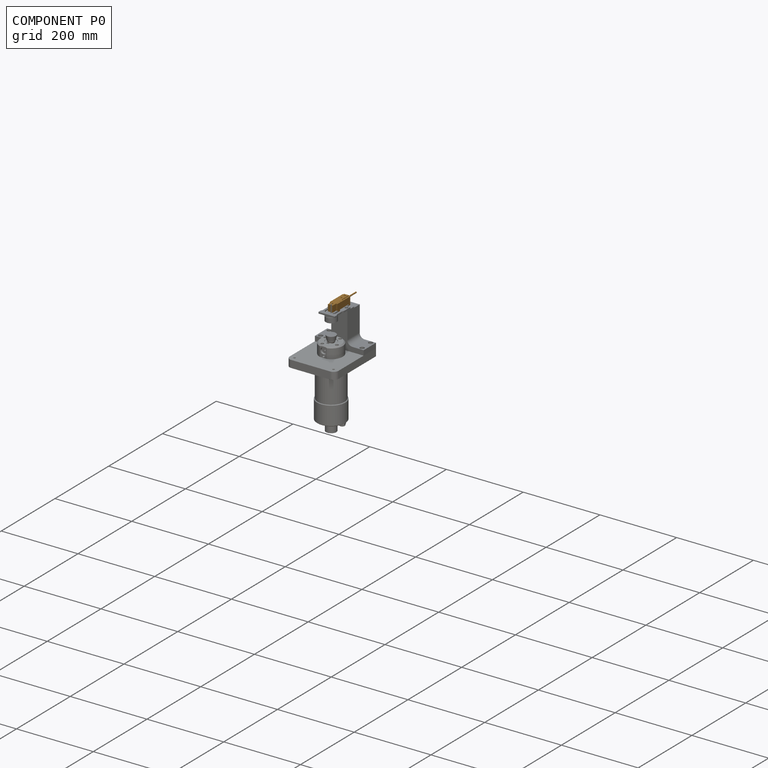
[diagram: component P0 — assembled]
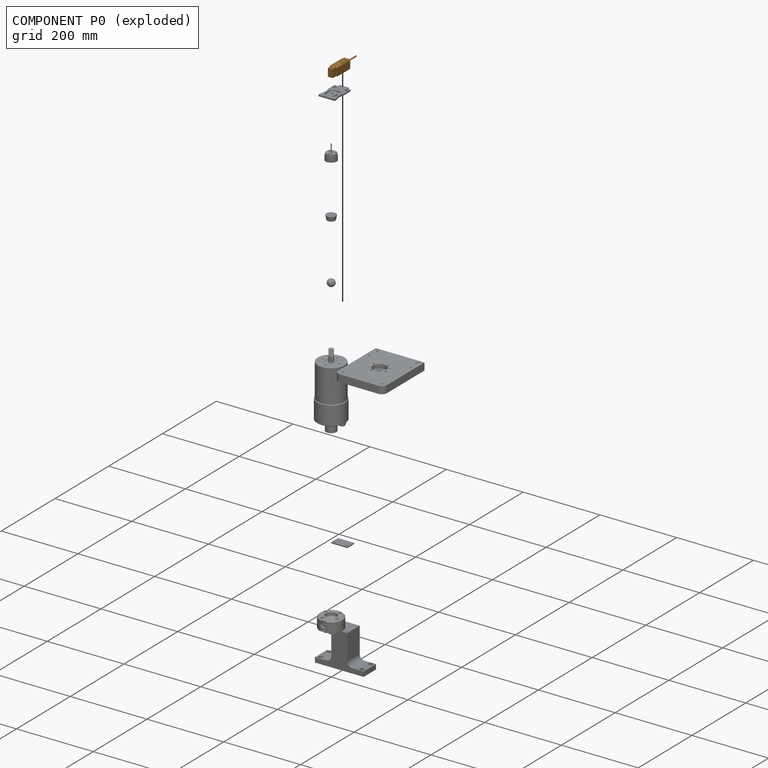
[diagram: component P0 — exploded]
COMPONENT P0 — geometry summary (no construction recipe available for this part):
  bounding box: 102.0 x 24.9 x 19.6 mm
  B-rep topology: 1 solid, 27 faces, 128 edges
  volume: 23128 mm^3 (47% of its bounding box)
Held by: FASTENED mate "Fastened 8" to P11; FASTENED mate "Fastened 7" to P3.
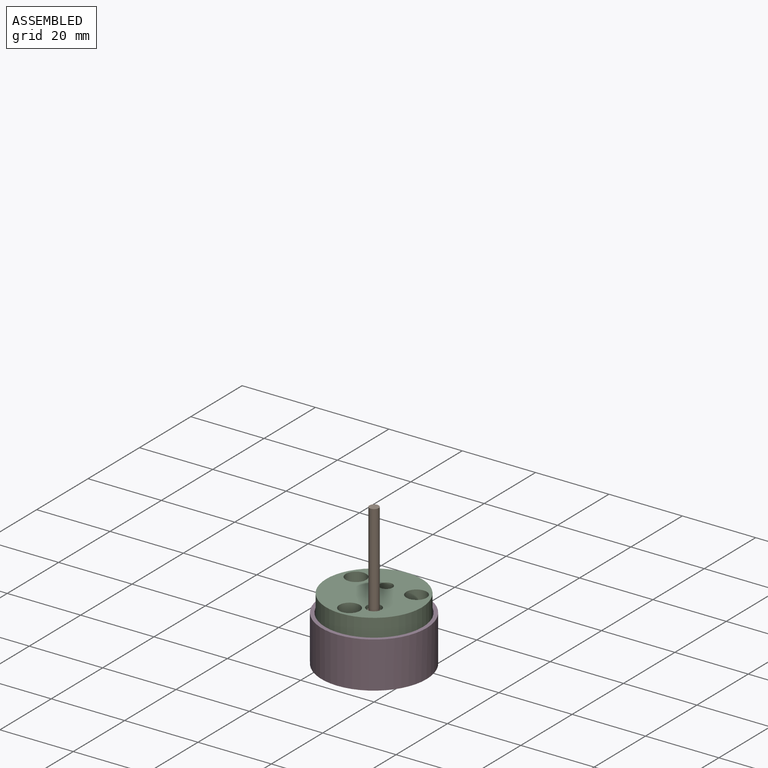
[diagram: subassembly S0 — assembled view]
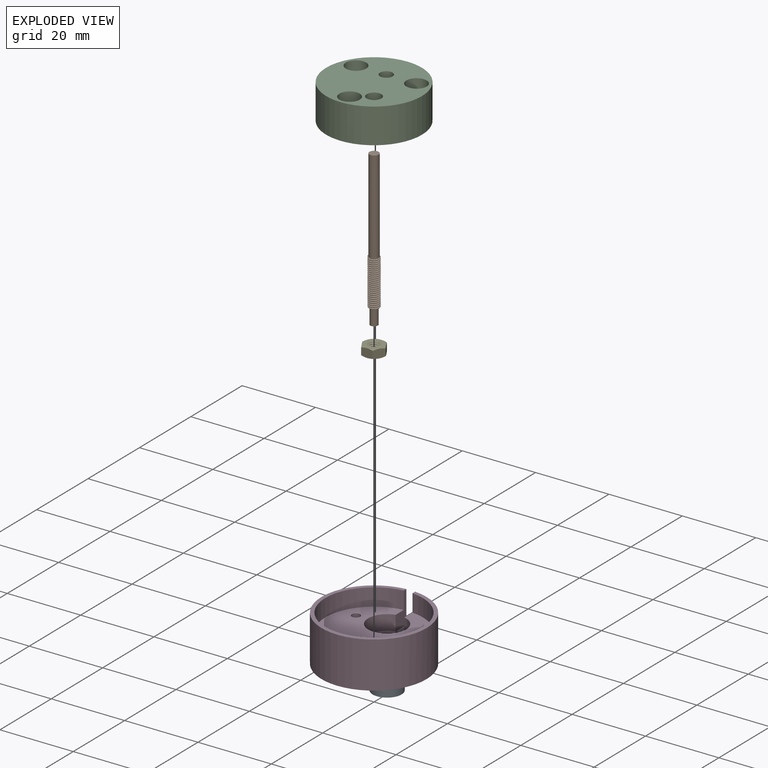
[diagram: subassembly S0 — exploded view]
SUBASSEMBLY S0 TOUR — 5 components, shown here in isolation at its own camera.

INTERNAL MATES
  1. FASTENED "Fastened 5": P9 <-> P6, direction (0.000, 0.000, 1.000) through (0.00, -9.53, 104.09) mm
  2. FASTENED "Fastened 1": P9 <-> P3, direction (0.000, 0.000, 1.000) through (0.00, 5.08, 97.16) mm
  3. FASTENED "Fastened 4": P9 <-> P12, direction (0.000, 0.000, 1.000) through (4.37, -6.24, 104.09) mm
  4. FASTENED "Fastened 3": P5 <-> P9, direction (0.000, 0.000, -1.000) through (4.37, -6.24, 96.27) mm
  5. FASTENED "Fastened 4": P9 <-> P12, direction (0.000, 0.000, 1.000) through (4.37, -6.24, 104.09) mm
  6. FASTENED "Fastened 5": P9 <-> P6, direction (0.000, 0.000, 1.000) through (0.00, -9.53, 104.09) mm
  7. FASTENED "Fastened 1": P9 <-> P3, direction (0.000, 0.000, 1.000) through (0.00, 5.08, 97.16) mm
  8. FASTENED "Fastened 3": P5 <-> P9, direction (0.000, 0.000, -1.000) through (4.37, -6.24, 96.27) mm

ASSEMBLY ORDER (within the subassembly)
  1. P9 — the base component [order heuristic]
  2. P3 [order heuristic]
  3. P5 [order heuristic]
  4. P6 [order heuristic]
  5. P12 [order heuristic]
Order-tag legend:
  [order heuristic] — this assembly is geometrically interlocked (no collision-free removal order exists), so components are listed in mate-graph order; insertion feasibility is not verified.
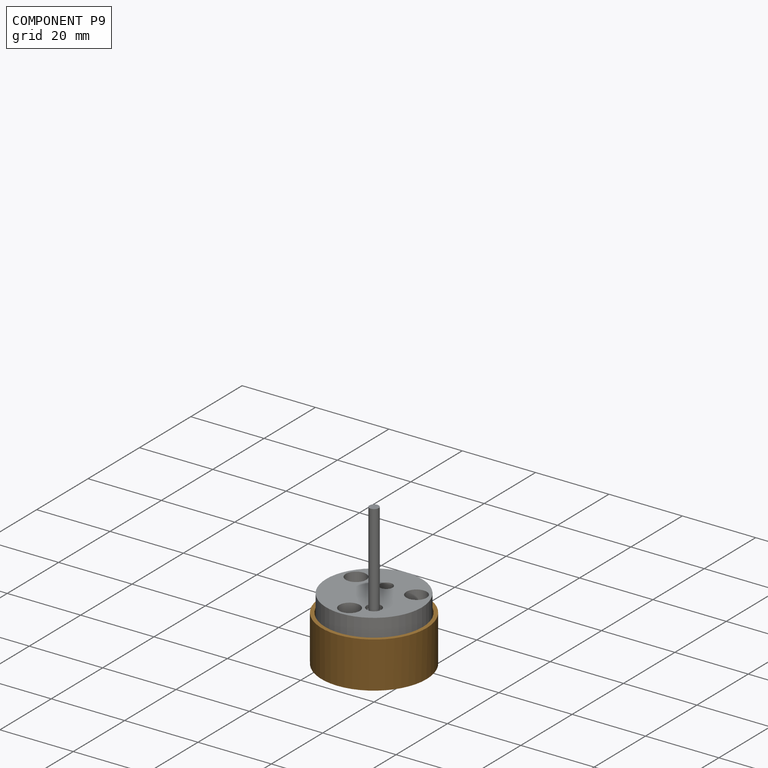
[diagram: component P9 — assembled]
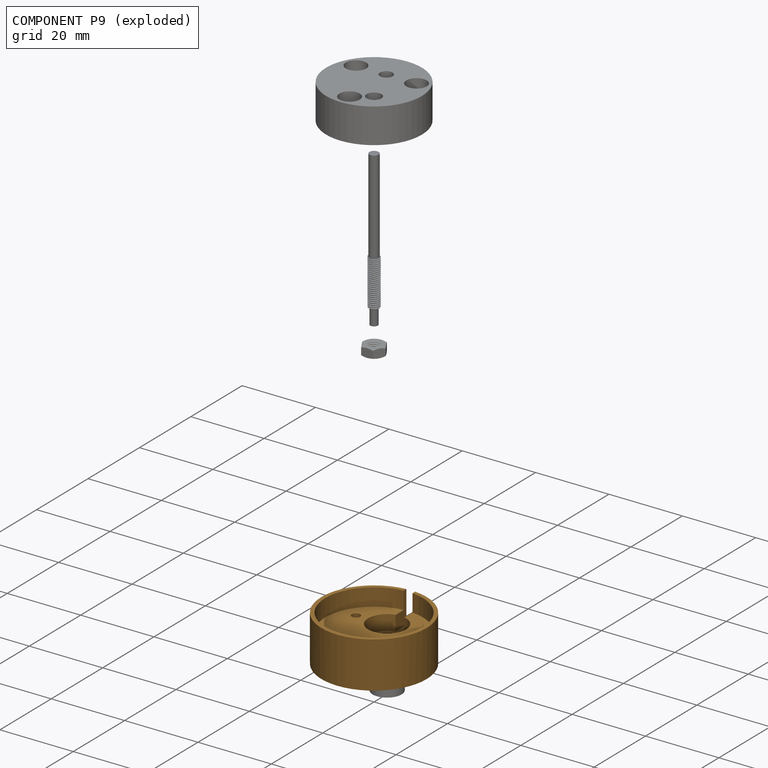
[diagram: component P9 — exploded]
COMPONENT P9 — geometry summary (no construction recipe available for this part):
  bounding box: 28.7 x 28.7 x 12.6 mm
  B-rep topology: 1 solid, 18 faces, 81 edges
  volume: 4821 mm^3 (47% of its bounding box)
Held by: FASTENED mate "Fastened 5" to P6; FASTENED mate "Fastened 1" to P3; FASTENED mate "Fastened 4" to P12; FASTENED mate "Fastened 3" to P5; FASTENED mate "Fastened 4" to P12; FASTENED mate "Fastened 5" to P6; FASTENED mate "Fastened 1" to P3; FASTENED mate "Fastened 3" to P5.
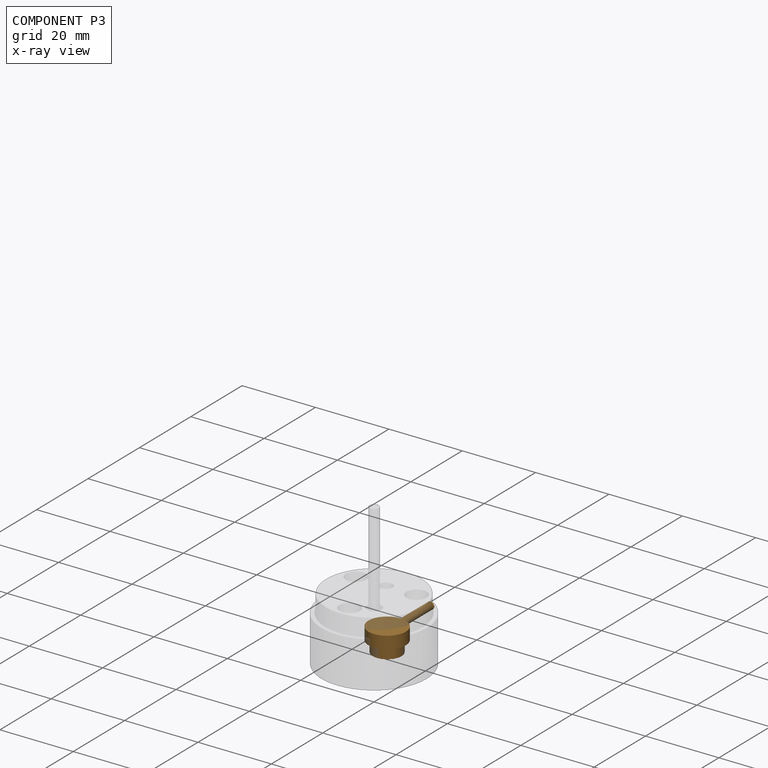
[diagram: component P3 — x-ray view]
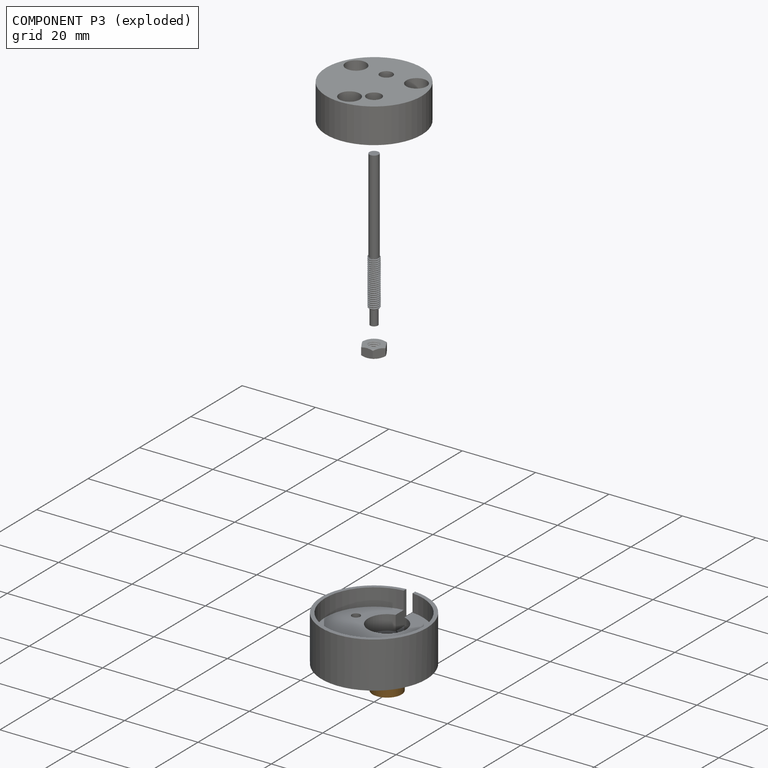
[diagram: component P3 — exploded]
COMPONENT P3 — geometry summary (no construction recipe available for this part):
  bounding box: 22.1 x 10.2 x 6.4 mm
  B-rep topology: 1 solid, 7 faces, 20 edges
  volume: 461 mm^3 (32% of its bounding box)
  symmetry: mirror-symmetric across its z mid-plane
Held by: FASTENED mate "Fastened 1" to P9; FASTENED mate "Fastened 1" to P9.
